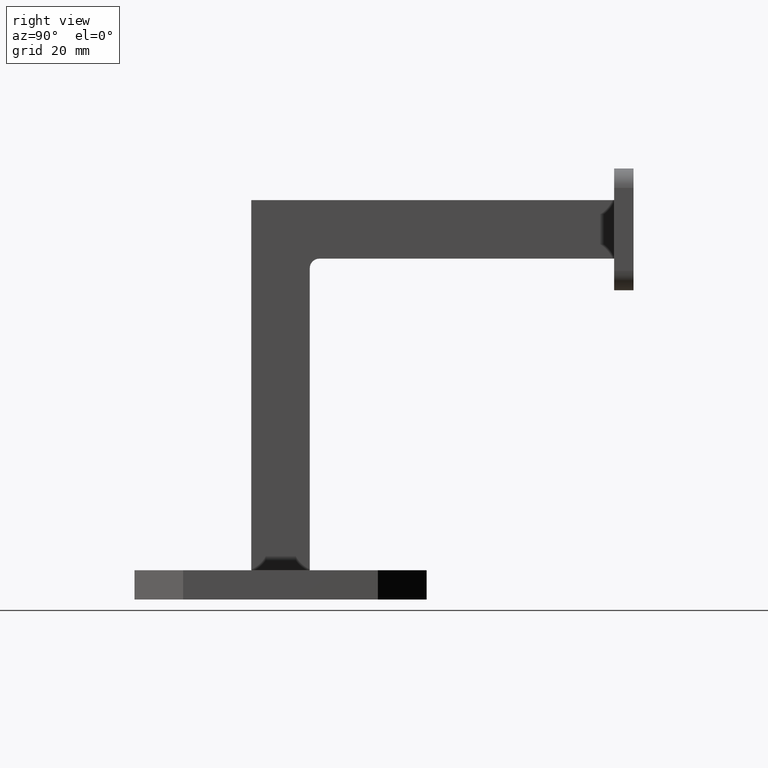
[diagram: clean part render]
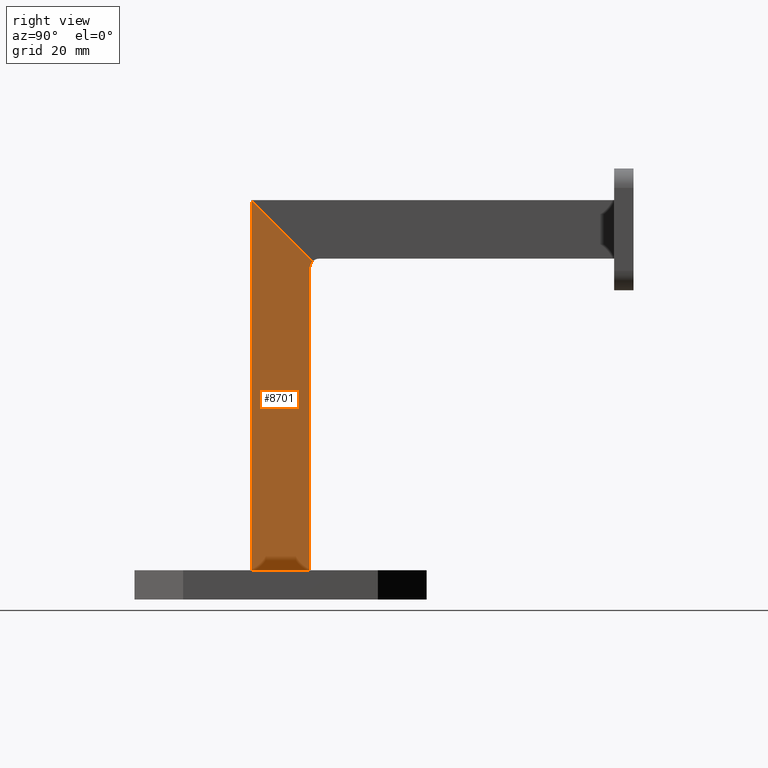
[diagram: same view with one face highlighted and labeled with its STEP entity id]
A machine part, right view. The second image highlights one B-rep face of the part: STEP entity #8701.
In plain terms, the highlighted planar face has unit normal (1, -0, -0).
Its self-contained STEP definition (entity closure, byte-faithful):
#421 = ORIENTED_EDGE ( 'NONE', *, *, #13566, .T. ) ;
#491 = CARTESIAN_POINT ( 'NONE',  ( 6.000000000000002665, 6.000000000000000000, 3.070000000000000284 ) ) ;
#541 = DIRECTION ( 'NONE',  ( -1.022195611122249425E-16, -0.7071067811865475727, 0.7071067811865474617 ) ) ;
#734 = DIRECTION ( 'NONE',  ( -0.000000000000000000, 1.224646799147353207E-16, -1.000000000000000000 ) ) ;
#1073 = VERTEX_POINT ( 'NONE', #10371 ) ;
#2123 = ORIENTED_EDGE ( 'NONE', *, *, #11593, .T. ) ;
#2270 = EDGE_CURVE ( 'NONE', #10014, #1073, #5236, .T. ) ;
#2446 = FACE_OUTER_BOUND ( 'NONE', #12567, .T. ) ;
#2800 = CARTESIAN_POINT ( 'NONE',  ( 6.000000000000002665, 5.999999999999988454, 89.97056274847714974 ) ) ;
#2890 = VECTOR ( 'NONE', #734, 1000.000000000000000 ) ;
#3826 = CARTESIAN_POINT ( 'NONE',  ( 6.000000000000002665, 5.999999999999992006, 64.99999999999997158 ) ) ;
#5236 = LINE ( 'NONE', #17686, #2890 ) ;
#5357 = CIRCLE ( 'NONE', #7786, 2.000000000000000000 ) ;
#5718 = DIRECTION ( 'NONE',  ( -0.000000000000000000, 1.224646799147353207E-16, -1.000000000000000000 ) ) ;
#5874 = CARTESIAN_POINT ( 'NONE',  ( 6.000000000000000888, -6.000000000000009770, 78.99999999999998579 ) ) ;
#6208 = DIRECTION ( 'NONE',  ( -1.000000000000000000, 1.445602896647339410E-16, 1.770352960217306030E-32 ) ) ;
#6293 = CARTESIAN_POINT ( 'NONE',  ( 6.000000000000002665, 7.999999999999992895, 64.99999999999997158 ) ) ;
#6950 = LINE ( 'NONE', #2800, #10125 ) ;
#7143 = VERTEX_POINT ( 'NONE', #3826 ) ;
#7266 = PLANE ( 'NONE',  #14348 ) ;
#7786 = AXIS2_PLACEMENT_3D ( 'NONE', #6293, #6208, #15407 ) ;
#8174 = LINE ( 'NONE', #491, #11973 ) ;
#8379 = CARTESIAN_POINT ( 'NONE',  ( 6.000000000000002665, 5.999999999999999112, 3.070000000000003393 ) ) ;
#8701 = ADVANCED_FACE ( 'NONE', ( #2446 ), #7266, .T. ) ;
#9099 = VECTOR ( 'NONE', #541, 1000.000000000000000 ) ;
#10014 = VERTEX_POINT ( 'NONE', #5874 ) ;
#10125 = VECTOR ( 'NONE', #5718, 1000.000000000000000 ) ;
#10371 = CARTESIAN_POINT ( 'NONE',  ( 6.000000000000000888, -6.000000000000000888, 3.070000000000003393 ) ) ;
#10810 = VERTEX_POINT ( 'NONE', #8379 ) ;
#11412 = DIRECTION ( 'NONE',  ( 1.445602896647339410E-16, 1.000000000000000000, 0.000000000000000000 ) ) ;
#11593 = EDGE_CURVE ( 'NONE', #7143, #21558, #5357, .T. ) ;
#11732 = ORIENTED_EDGE ( 'NONE', *, *, #2270, .T. ) ;
#11973 = VECTOR ( 'NONE', #21286, 1000.000000000000000 ) ;
#12567 = EDGE_LOOP ( 'NONE', ( #11732, #20295, #17037, #2123, #421 ) ) ;
#13566 = EDGE_CURVE ( 'NONE', #21558, #10014, #19956, .T. ) ;
#14348 = AXIS2_PLACEMENT_3D ( 'NONE', #18725, #15036, #11412 ) ;
#15036 = DIRECTION ( 'NONE',  ( 1.000000000000000000, -1.445602896647339410E-16, -1.770352960217306030E-32 ) ) ;
#15407 = DIRECTION ( 'NONE',  ( 0.000000000000000000, 1.000000000000000000, -1.387778780781445676E-14 ) ) ;
#16282 = EDGE_CURVE ( 'NONE', #1073, #10810, #8174, .T. ) ;
#17037 = ORIENTED_EDGE ( 'NONE', *, *, #20638, .F. ) ;
#17686 = CARTESIAN_POINT ( 'NONE',  ( 6.000000000000000888, -6.000000000000011546, 89.97056274847714974 ) ) ;
#18725 = CARTESIAN_POINT ( 'NONE',  ( 6.000000000000002665, 5.999999999999988454, 89.97056274847714974 ) ) ;
#19294 = CARTESIAN_POINT ( 'NONE',  ( 6.000000000000000888, -5.485281374238592633, 78.48528137423856776 ) ) ;
#19956 = LINE ( 'NONE', #19294, #9099 ) ;
#20295 = ORIENTED_EDGE ( 'NONE', *, *, #16282, .T. ) ;
#20638 = EDGE_CURVE ( 'NONE', #7143, #10810, #6950, .T. ) ;
#20694 = CARTESIAN_POINT ( 'NONE',  ( 6.000000000000002665, 6.585786437626897083, 66.41421356237307805 ) ) ;
#21286 = DIRECTION ( 'NONE',  ( 1.445602896647339410E-16, 1.000000000000000000, -0.000000000000000000 ) ) ;
#21558 = VERTEX_POINT ( 'NONE', #20694 ) ;